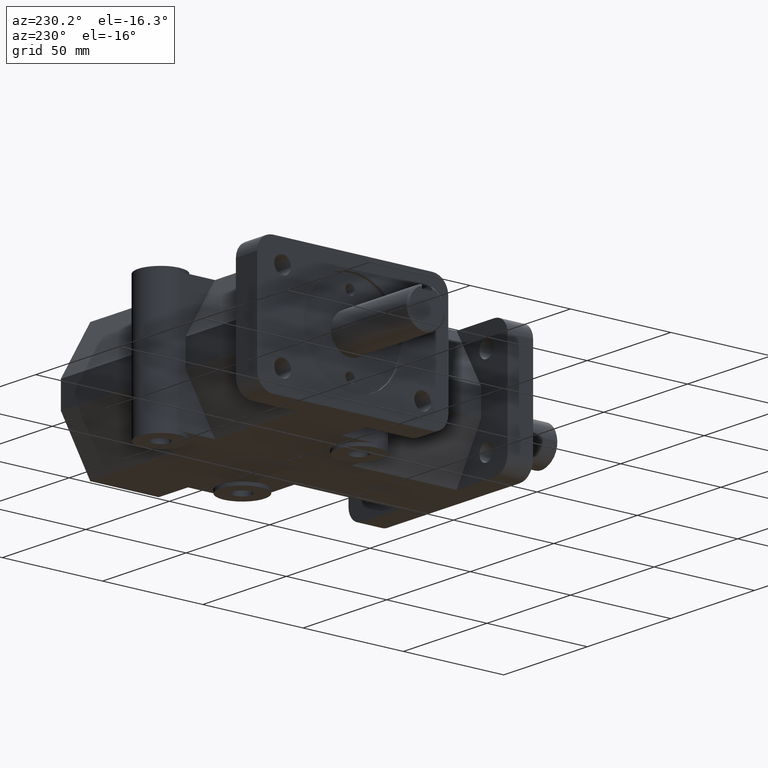
[diagram: clean part render]
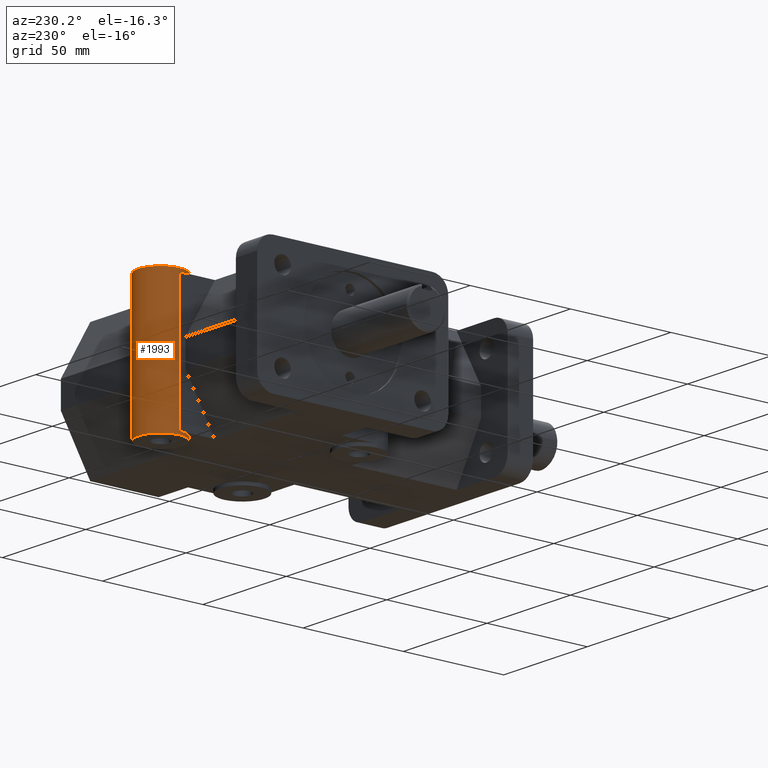
[diagram: same view with one face highlighted and labeled with its STEP entity id]
A machine part, auxiliary view. The second image highlights one B-rep face of the part: STEP entity #1993.
In plain terms, the highlighted cylindrical surface (bore or boss wall) has radius 11.1125 mm, axis along (0, 0, -1).
Its self-contained STEP definition (entity closure, byte-faithful):
#195=LINE('',#3339,#386);
#196=LINE('',#3341,#387);
#197=LINE('',#3342,#388);
#198=LINE('',#3343,#389);
#386=VECTOR('',#2727,1.);
#387=VECTOR('',#2730,0.4375);
#388=VECTOR('',#2731,1.);
#389=VECTOR('',#2732,0.4375);
#432=CYLINDRICAL_SURFACE('',#2196,0.4375);
#556=FACE_OUTER_BOUND('',#692,.T.);
#692=EDGE_LOOP('',(#1708,#1709,#1710,#1711,#1712,#1713,#1714,#1715,#1716,
#1717));
#747=CIRCLE('',#2058,0.4375);
#748=CIRCLE('',#2063,0.4375);
#806=CIRCLE('',#2186,0.4375);
#807=CIRCLE('',#2188,0.4375);
#845=VERTEX_POINT('',#2882);
#846=VERTEX_POINT('',#2884);
#877=VERTEX_POINT('',#2956);
#878=VERTEX_POINT('',#2958);
#983=VERTEX_POINT('',#3305);
#984=VERTEX_POINT('',#3308);
#1032=EDGE_CURVE('',#845,#846,#747,.T.);
#1070=EDGE_CURVE('',#877,#878,#748,.T.);
#1239=EDGE_CURVE('',#983,#983,#806,.T.);
#1240=EDGE_CURVE('',#984,#984,#807,.T.);
#1255=EDGE_CURVE('',#845,#878,#195,.T.);
#1256=EDGE_CURVE('',#984,#877,#196,.T.);
#1257=EDGE_CURVE('',#846,#877,#197,.T.);
#1258=EDGE_CURVE('',#846,#983,#198,.T.);
#1708=ORIENTED_EDGE('',*,*,#1240,.T.);
#1709=ORIENTED_EDGE('',*,*,#1256,.T.);
#1710=ORIENTED_EDGE('',*,*,#1257,.F.);
#1711=ORIENTED_EDGE('',*,*,#1258,.T.);
#1712=ORIENTED_EDGE('',*,*,#1239,.T.);
#1713=ORIENTED_EDGE('',*,*,#1258,.F.);
#1714=ORIENTED_EDGE('',*,*,#1032,.F.);
#1715=ORIENTED_EDGE('',*,*,#1255,.T.);
#1716=ORIENTED_EDGE('',*,*,#1070,.F.);
#1717=ORIENTED_EDGE('',*,*,#1256,.F.);
#1993=ADVANCED_FACE('',(#556),#432,.T.);
#2058=AXIS2_PLACEMENT_3D('',#2885,#2293,#2294);
#2063=AXIS2_PLACEMENT_3D('',#2959,#2340,#2341);
#2186=AXIS2_PLACEMENT_3D('',#3306,#2693,#2694);
#2188=AXIS2_PLACEMENT_3D('',#3309,#2697,#2698);
#2196=AXIS2_PLACEMENT_3D('',#3340,#2728,#2729);
#2293=DIRECTION('center_axis',(0.,0.,-1.));
#2294=DIRECTION('ref_axis',(1.,0.,0.));
#2340=DIRECTION('center_axis',(0.,0.,1.));
#2341=DIRECTION('ref_axis',(1.,0.,0.));
#2693=DIRECTION('center_axis',(0.,0.,-1.));
#2694=DIRECTION('ref_axis',(1.,0.,0.));
#2697=DIRECTION('center_axis',(0.,0.,1.));
#2698=DIRECTION('ref_axis',(1.,0.,0.));
#2727=DIRECTION('',(0.,0.,-1.));
#2728=DIRECTION('center_axis',(0.,0.,-1.));
#2729=DIRECTION('ref_axis',(1.,0.,0.));
#2730=DIRECTION('',(0.,0.,1.));
#2731=DIRECTION('',(0.,0.,-1.));
#2732=DIRECTION('',(0.,0.,1.));
#2882=CARTESIAN_POINT('',(0.4375,5.75,1.25));
#2884=CARTESIAN_POINT('',(-0.4375,5.75,1.25));
#2885=CARTESIAN_POINT('Origin',(0.,5.75,1.25));
#2956=CARTESIAN_POINT('',(-0.4375,5.75,-1.25));
#2958=CARTESIAN_POINT('',(0.4375,5.75,-1.25));
#2959=CARTESIAN_POINT('Origin',(0.,5.75,-1.25));
#3305=CARTESIAN_POINT('',(-0.4375,5.75,1.3125));
#3306=CARTESIAN_POINT('Origin',(0.,5.75,1.3125));
#3308=CARTESIAN_POINT('',(-0.4375,5.75,-1.3125));
#3309=CARTESIAN_POINT('Origin',(0.,5.75,-1.3125));
#3339=CARTESIAN_POINT('',(0.4375,5.75,0.));
#3340=CARTESIAN_POINT('Origin',(0.,5.75,0.));
#3341=CARTESIAN_POINT('',(-0.4375,5.75,0.));
#3342=CARTESIAN_POINT('',(-0.4375,5.75,0.));
#3343=CARTESIAN_POINT('',(-0.4375,5.75,0.));